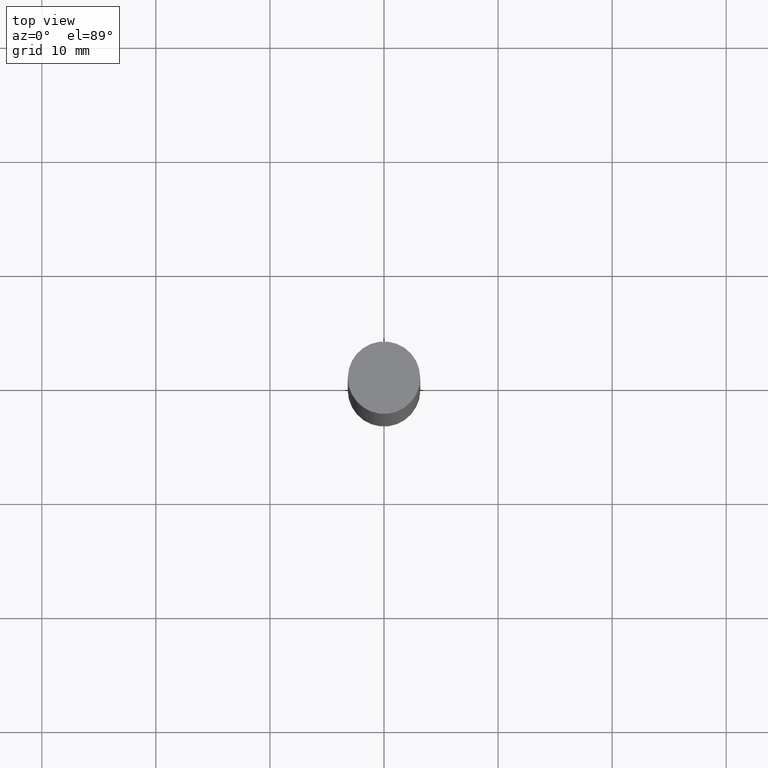
[diagram: clean part render]
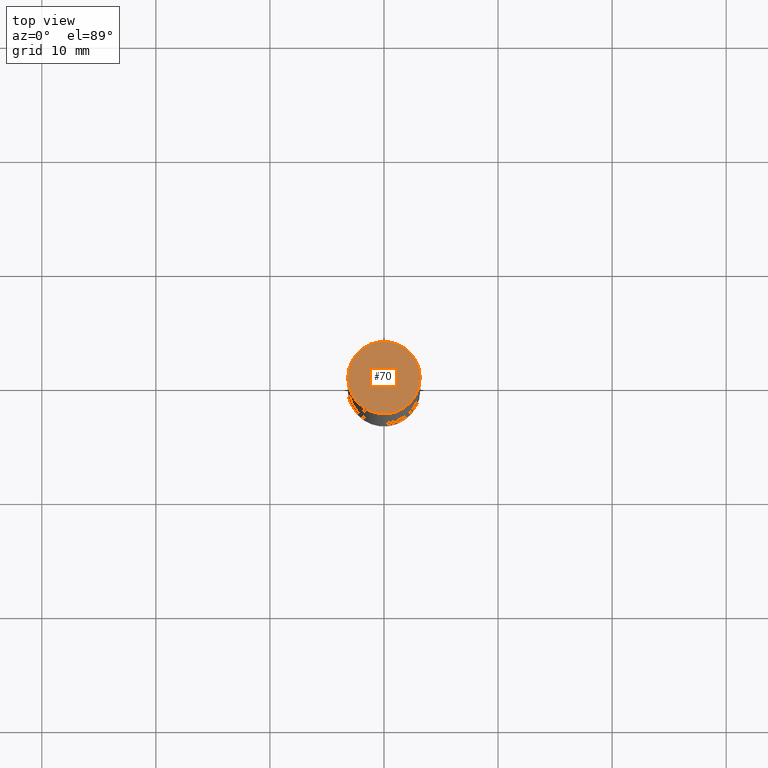
[diagram: same view with one face highlighted and labeled with its STEP entity id]
A machine part, top view. The second image highlights one B-rep face of the part: STEP entity #70.
In plain terms, the highlighted planar face has unit normal (0, 0, 1).
Its self-contained STEP definition (entity closure, byte-faithful):
#67 = VERTEX_POINT ( 'NONE', #337 ) ;
#70 = ADVANCED_FACE ( 'NONE', ( #396 ), #385, .T. ) ;
#120 = ORIENTED_EDGE ( 'NONE', *, *, #258, .T. ) ;
#141 = EDGE_LOOP ( 'NONE', ( #120, #642 ) ) ;
#165 = VERTEX_POINT ( 'NONE', #249 ) ;
#202 = DIRECTION ( 'NONE',  ( 1.000000000000000000, -6.982962677686266711E-15, 0.000000000000000000 ) ) ;
#238 = DIRECTION ( 'NONE',  ( 2.438088387897959769E-29, 3.492890411551753071E-15, 1.000000000000000000 ) ) ;
#249 = CARTESIAN_POINT ( 'NONE',  ( 0.1250000000000000000, -8.711089938250227947E-16, 5.463695987328526437E-16 ) ) ;
#258 = EDGE_CURVE ( 'NONE', #165, #67, #461, .T. ) ;
#336 = DIRECTION ( 'NONE',  ( 2.445468806185136597E-29, 3.492890411551752677E-15, 1.000000000000000000 ) ) ;
#337 = CARTESIAN_POINT ( 'NONE',  ( -0.1250000000000000000, -1.389901228073636467E-17, 5.463695987328557991E-16 ) ) ;
#380 = CARTESIAN_POINT ( 'NONE',  ( 6.113672015462842613E-29, 1.761340885760521790E-18, 5.463695987328526437E-16 ) ) ;
#383 = AXIS2_PLACEMENT_3D ( 'NONE', #380, #336, #544 ) ;
#385 = PLANE ( 'NONE',  #601 ) ;
#396 = FACE_OUTER_BOUND ( 'NONE', #141, .T. ) ;
#461 = CIRCLE ( 'NONE', #383, 0.1250000000000000000 ) ;
#511 = CARTESIAN_POINT ( 'NONE',  ( 6.113672015462842613E-29, 1.761340885760521790E-18, 5.463695987328526437E-16 ) ) ;
#544 = DIRECTION ( 'NONE',  ( 1.000000000000000000, -6.982962677686266711E-15, 0.000000000000000000 ) ) ;
#559 = CARTESIAN_POINT ( 'NONE',  ( 8.728703347108443769E-16, 0.1250000000000000278, 0.000000000000000000 ) ) ;
#571 = EDGE_CURVE ( 'NONE', #67, #165, #614, .T. ) ;
#575 = DIRECTION ( 'NONE',  ( 2.445468806185136597E-29, 3.492890411551752677E-15, 1.000000000000000000 ) ) ;
#590 = AXIS2_PLACEMENT_3D ( 'NONE', #511, #575, #202 ) ;
#601 = AXIS2_PLACEMENT_3D ( 'NONE', #559, #238, #666 ) ;
#614 = CIRCLE ( 'NONE', #590, 0.1250000000000000000 ) ;
#642 = ORIENTED_EDGE ( 'NONE', *, *, #571, .T. ) ;
#666 = DIRECTION ( 'NONE',  ( -1.000000000000000000, 6.982962677686265922E-15, -9.839502134516470631E-33 ) ) ;